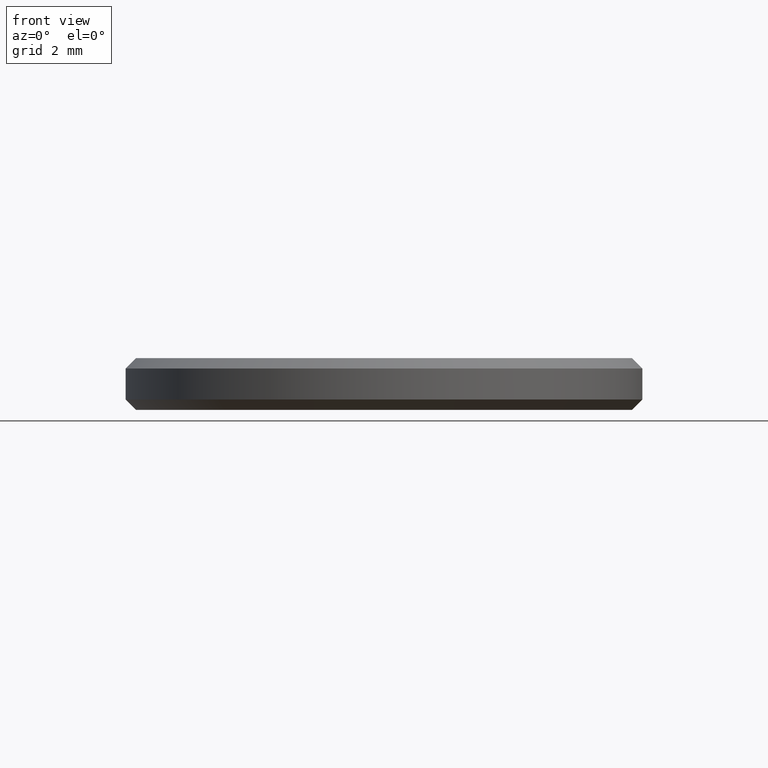
[diagram: clean part render]
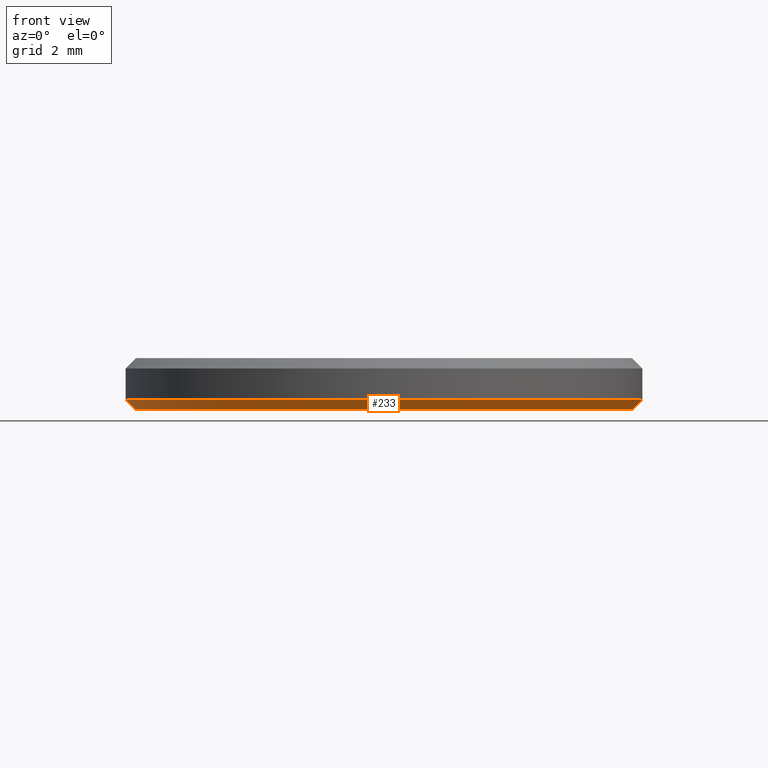
[diagram: same view with one face highlighted and labeled with its STEP entity id]
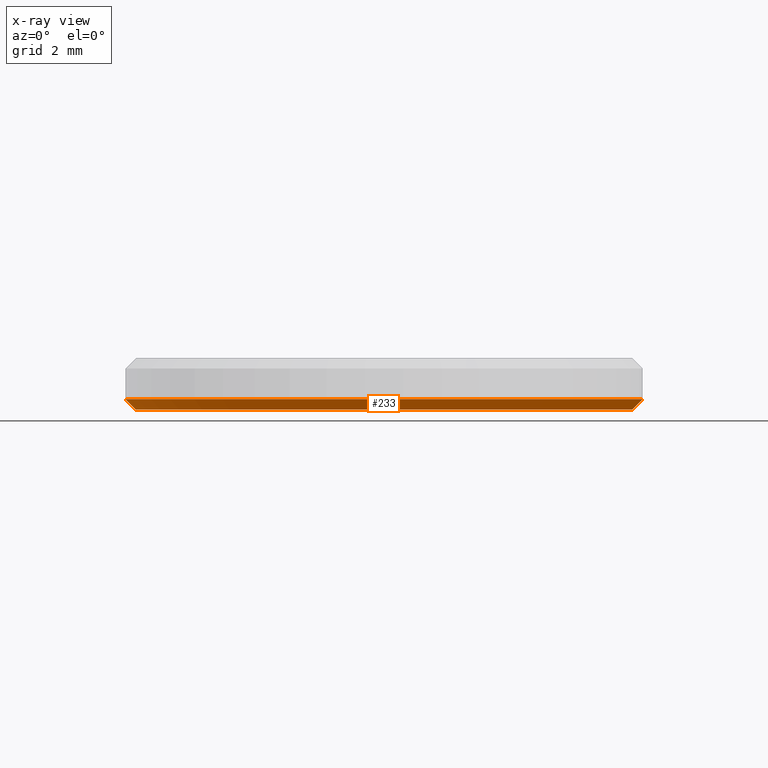
[diagram: x-ray of the same camera — body ghosted, the highlighted face saturated]
A machine part, front view. The second image highlights one B-rep face of the part: STEP entity #233.
The next image is the same camera in x-ray: the body ghosted, the highlighted face saturated — about 0% of this face is hidden behind the body in this view.
In plain terms, the highlighted conical surface has half-angle 45 deg.
Its self-contained STEP definition (entity closure, byte-faithful):
#3 = AXIS2_PLACEMENT_3D ( 'NONE', #140, #199, #122 ) ;
#5 = DIRECTION ( 'NONE',  ( 0.7071067811865490160, 0.000000000000000000, 0.7071067811865459074 ) ) ;
#6 = CARTESIAN_POINT ( 'NONE',  ( 0.000000000000000000, 0.000000000000000000, 0.000000000000000000 ) ) ;
#8 = DIRECTION ( 'NONE',  ( -0.000000000000000000, -0.000000000000000000, -1.000000000000000000 ) ) ;
#12 = DIRECTION ( 'NONE',  ( -0.7071067811865490160, 8.659560562354950115E-17, 0.7071067811865459074 ) ) ;
#17 = DIRECTION ( 'NONE',  ( 1.000000000000000000, 0.000000000000000000, 0.000000000000000000 ) ) ;
#28 = EDGE_CURVE ( 'NONE', #145, #163, #94, .T. ) ;
#37 = ORIENTED_EDGE ( 'NONE', *, *, #138, .F. ) ;
#44 = VECTOR ( 'NONE', #5, 1000.000000000000000 ) ;
#49 = CARTESIAN_POINT ( 'NONE',  ( -4.799999999999999822, 6.000769315822029754E-16, 0.000000000000000000 ) ) ;
#63 = EDGE_CURVE ( 'NONE', #145, #128, #101, .T. ) ;
#67 = LINE ( 'NONE', #232, #148 ) ;
#71 = CARTESIAN_POINT ( 'NONE',  ( -5.000000000000000000, 0.000000000000000000, 0.1999999999999996503 ) ) ;
#90 = CARTESIAN_POINT ( 'NONE',  ( 4.799999999999999822, 0.000000000000000000, 0.000000000000000000 ) ) ;
#92 = EDGE_LOOP ( 'NONE', ( #37, #159, #200, #237 ) ) ;
#94 = CIRCLE ( 'NONE', #229, 4.799999999999999822 ) ;
#95 = AXIS2_PLACEMENT_3D ( 'NONE', #216, #195, #17 ) ;
#96 = DIRECTION ( 'NONE',  ( 1.000000000000000000, 0.000000000000000000, 0.000000000000000000 ) ) ;
#101 = LINE ( 'NONE', #118, #44 ) ;
#118 = CARTESIAN_POINT ( 'NONE',  ( 5.000000000000000000, 0.000000000000000000, 0.1999999999999996503 ) ) ;
#122 = DIRECTION ( 'NONE',  ( 1.000000000000000000, 0.000000000000000000, 0.000000000000000000 ) ) ;
#128 = VERTEX_POINT ( 'NONE', #211 ) ;
#138 = EDGE_CURVE ( 'NONE', #163, #201, #67, .T. ) ;
#140 = CARTESIAN_POINT ( 'NONE',  ( 0.000000000000000000, 0.000000000000000000, 0.1999999999999996503 ) ) ;
#145 = VERTEX_POINT ( 'NONE', #90 ) ;
#148 = VECTOR ( 'NONE', #12, 1000.000000000000000 ) ;
#159 = ORIENTED_EDGE ( 'NONE', *, *, #28, .F. ) ;
#163 = VERTEX_POINT ( 'NONE', #49 ) ;
#195 = DIRECTION ( 'NONE',  ( -0.000000000000000000, -0.000000000000000000, 1.000000000000000000 ) ) ;
#199 = DIRECTION ( 'NONE',  ( -0.000000000000000000, -0.000000000000000000, 1.000000000000000000 ) ) ;
#200 = ORIENTED_EDGE ( 'NONE', *, *, #63, .T. ) ;
#201 = VERTEX_POINT ( 'NONE', #71 ) ;
#211 = CARTESIAN_POINT ( 'NONE',  ( 5.000000000000000000, 6.123233995736766282E-16, 0.1999999999999996503 ) ) ;
#214 = FACE_OUTER_BOUND ( 'NONE', #92, .T. ) ;
#216 = CARTESIAN_POINT ( 'NONE',  ( 0.000000000000000000, 0.000000000000000000, 0.1999999999999996503 ) ) ;
#223 = EDGE_CURVE ( 'NONE', #201, #128, #231, .T. ) ;
#229 = AXIS2_PLACEMENT_3D ( 'NONE', #6, #8, #96 ) ;
#230 = CONICAL_SURFACE ( 'NONE', #95, 5.000000000000000000, 0.7853981633974503884 ) ;
#231 = CIRCLE ( 'NONE', #3, 5.000000000000000000 ) ;
#232 = CARTESIAN_POINT ( 'NONE',  ( -5.000000000000000000, 6.123233995736765296E-16, 0.1999999999999996503 ) ) ;
#233 = ADVANCED_FACE ( 'NONE', ( #214 ), #230, .T. ) ;
#237 = ORIENTED_EDGE ( 'NONE', *, *, #223, .F. ) ;